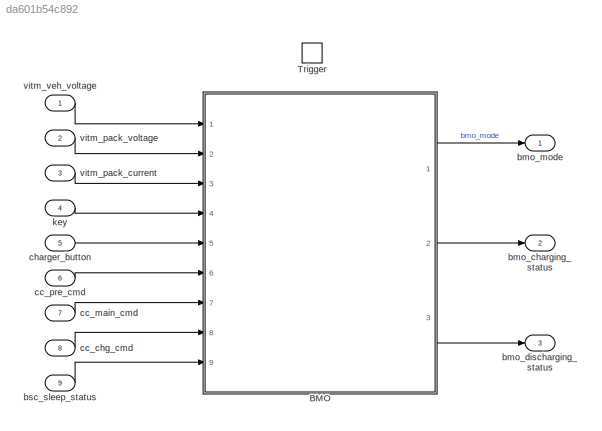
MODEL slx_da601b54c892
KIND model
CONFIG AbsTol = auto
CONFIG FixedStep = auto
CONFIG MaxStep = auto
CONFIG MinStep = auto
CONFIG RelTol = 1e-3
CONFIG SampleTimeConstraint = Unconstrained
CONFIG Solver = FixedStepAuto
CONFIG SolverMode = Auto
CONFIG SolverName = FixedStepAuto
CONFIG StartTime = 0.0
CONFIG StopTime = 10.0
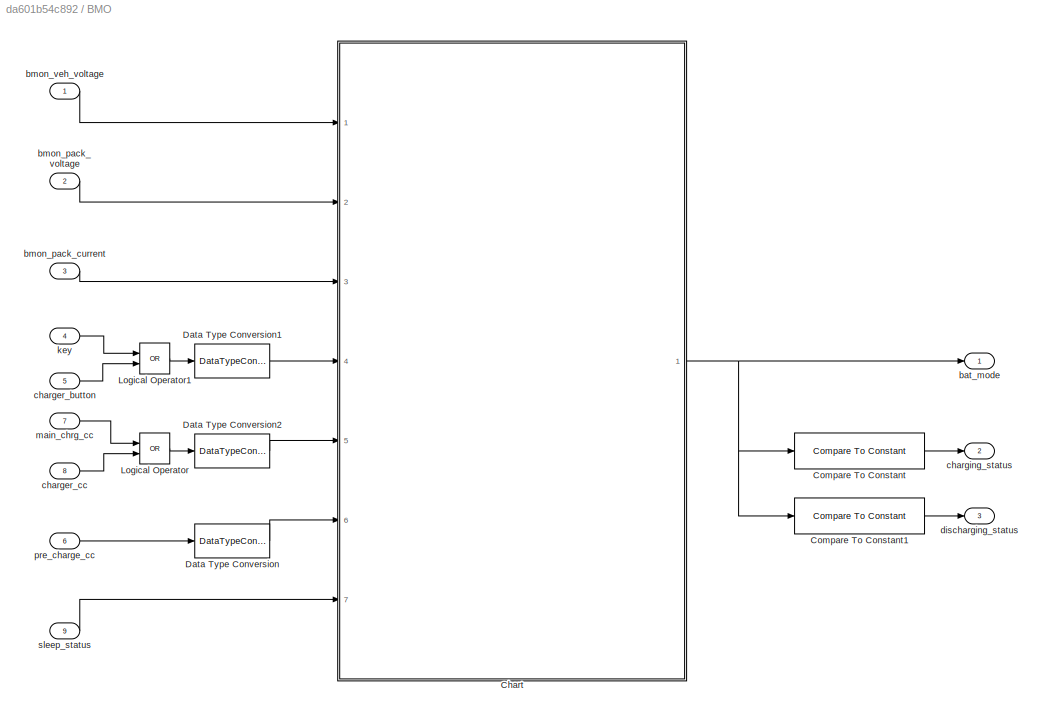
BLOCK [SubSystem] BMO
  Ports = [9, 3]
  RequestExecContextInheritance = off
  TreatAsAtomicUnit = on
  Variant = off
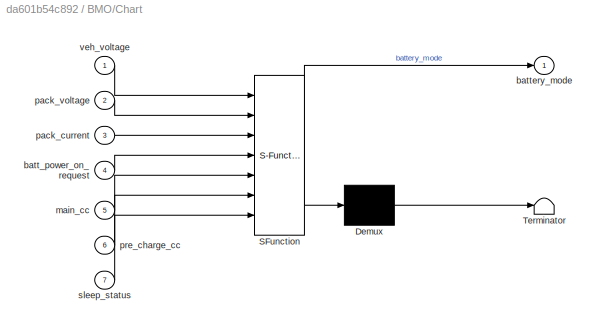
BLOCK [SubSystem] BMO/Chart
  ErrorFcn = Stateflow.Translate.translate
  PermitHierarchicalResolution = ExplicitOnly
  Ports = [7, 1]
  RequestExecContextInheritance = off
  SFBlockType = Chart
  TreatAsAtomicUnit = on
  Variant = off
BLOCK [Demux] BMO/Chart/ Demux 
  Outputs = 1
  Ports = [1, 1]
BLOCK [S-Function] BMO/Chart/ SFunction 
  EnableBusSupport = on
  FunctionName = sf_sfun
  Parameters = BMOk_BatteryCurrentThresh,BMOk_CcClosing,BMOk_CcOpening,BMOk_Charging,BMOk_ChargingSleep,BMOk_Discharging,BMOk_Off,BMOk_On,BMOk_PowerClosed,BMOk_PowerOff,BMOk_PowerOn
  PortCounts = [7 2]
  Ports = [7, 2]
  SFunctionDeploymentMode = off
  Tag = Stateflow S-Function BMO 1
BLOCK [Terminator] BMO/Chart/ Terminator 
BLOCK [Inport] BMO/Chart/batt_power_on_request
  IconDisplay = Port number
  Port = 4
BLOCK [Outport] BMO/Chart/battery_mode
  IconDisplay = Port number
BLOCK [Inport] BMO/Chart/main_cc
  IconDisplay = Port number
  Port = 5
BLOCK [Inport] BMO/Chart/pack_current
  IconDisplay = Port number
  Port = 3
BLOCK [Inport] BMO/Chart/pack_voltage
  IconDisplay = Port number
  Port = 2
BLOCK [Inport] BMO/Chart/pre_charge_cc
  IconDisplay = Port number
  Port = 6
BLOCK [Inport] BMO/Chart/sleep_status
  IconDisplay = Port number
  Port = 7
BLOCK [Inport] BMO/Chart/veh_voltage
  IconDisplay = Port number
BLOCK [Reference] BMO/Compare To Constant  REF=simulink/Logic and Bit
Operations/Compare
To Constant
  Ports = [1, 1]
  SourceBlock = simulink/Logic and Bit\nOperations/Compare\nTo Constant
  SourceType = Compare To Constant
BLOCK [Reference] BMO/Compare To Constant1  REF=simulink/Logic and Bit
Operations/Compare
To Constant
  Ports = [1, 1]
  SourceBlock = simulink/Logic and Bit\nOperations/Compare\nTo Constant
  SourceType = Compare To Constant
BLOCK [DataTypeConversion] BMO/Data Type Conversion
  RndMeth = Floor
  SaturateOnIntegerOverflow = off
BLOCK [DataTypeConversion] BMO/Data Type Conversion1
  RndMeth = Floor
  SaturateOnIntegerOverflow = off
BLOCK [DataTypeConversion] BMO/Data Type Conversion2
  RndMeth = Floor
  SaturateOnIntegerOverflow = off
BLOCK [Logic] BMO/Logical Operator
  AllPortsSameDT = off
  Operator = OR
  OutDataTypeStr = boolean
  Ports = [2, 1]
BLOCK [Logic] BMO/Logical Operator1
  AllPortsSameDT = off
  Operator = OR
  OutDataTypeStr = boolean
  Ports = [2, 1]
BLOCK [Outport] BMO/bat_mode
  IconDisplay = Port number
BLOCK [Inport] BMO/bmon_pack_current
  IconDisplay = Port number
  Port = 3
BLOCK [Inport] BMO/bmon_pack_voltage
  IconDisplay = Port number
  Port = 2
BLOCK [Inport] BMO/bmon_veh_voltage
  IconDisplay = Port number
BLOCK [Inport] BMO/charger_button
  IconDisplay = Port number
  Port = 5
BLOCK [Inport] BMO/charger_cc
  IconDisplay = Port number
  Port = 8
BLOCK [Outport] BMO/charging_status
  IconDisplay = Port number
  Port = 2
BLOCK [Outport] BMO/discharging_status
  IconDisplay = Port number
  Port = 3
BLOCK [Inport] BMO/key
  IconDisplay = Port number
  Port = 4
BLOCK [Inport] BMO/main_chrg_cc
  IconDisplay = Port number
  Port = 7
BLOCK [Inport] BMO/pre_charge_cc
  IconDisplay = Port number
  Port = 6
BLOCK [Inport] BMO/sleep_status
  IconDisplay = Port number
  Port = 9
BLOCK [TriggerPort] Trigger
  PortDimensions = 1
  Ports = []
  StatesWhenEnabling = held
  TriggerType = function-call
BLOCK [Outport] bmo_charging_status
  IconDisplay = Port number
  Port = 2
BLOCK [Outport] bmo_discharging_status
  IconDisplay = Port number
  Port = 3
BLOCK [Outport] bmo_mode
  IconDisplay = Port number
BLOCK [Inport] bsc_sleep_status
  IconDisplay = Port number
  OutDataTypeStr = boolean
  Port = 9
BLOCK [Inport] cc_chg_cmd
  IconDisplay = Port number
  OutDataTypeStr = boolean
  Port = 8
BLOCK [Inport] cc_main_cmd
  IconDisplay = Port number
  Port = 7
BLOCK [Inport] cc_pre_cmd
  IconDisplay = Port number
  Port = 6
BLOCK [Inport] charger_button
  IconDisplay = Port number
  OutDataTypeStr = uint8
  Port = 5
BLOCK [Inport] key
  IconDisplay = Port number
  OutDataTypeStr = uint8
  Port = 4
BLOCK [Inport] vitm_pack_current
  IconDisplay = Port number
  Port = 3
BLOCK [Inport] vitm_pack_voltage
  IconDisplay = Port number
  Port = 2
BLOCK [Inport] vitm_veh_voltage
  IconDisplay = Port number
NET BMO/Chart:1 -> BMO/Compare To Constant1:1, BMO/Compare To Constant:1, BMO/bat_mode:1
LINE BMO/Compare To Constant1:1 -> BMO/discharging_status:1
LINE BMO/Compare To Constant:1 -> BMO/charging_status:1
LINE BMO/Data Type Conversion1:1 -> BMO/Chart:4
LINE BMO/Data Type Conversion2:1 -> BMO/Chart:5
LINE BMO/Data Type Conversion:1 -> BMO/Chart:6
LINE BMO/Logical Operator1:1 -> BMO/Data Type Conversion1:1
LINE BMO/Logical Operator:1 -> BMO/Data Type Conversion2:1
LINE BMO/bmon_pack_current:1 -> BMO/Chart:3
LINE BMO/bmon_pack_voltage:1 -> BMO/Chart:2
LINE BMO/bmon_veh_voltage:1 -> BMO/Chart:1
LINE BMO/charger_button:1 -> BMO/Logical Operator1:2
LINE BMO/charger_cc:1 -> BMO/Logical Operator:2
LINE BMO/key:1 -> BMO/Logical Operator1:1
LINE BMO/main_chrg_cc:1 -> BMO/Logical Operator:1
LINE BMO/pre_charge_cc:1 -> BMO/Data Type Conversion:1
LINE BMO/sleep_status:1 -> BMO/Chart:7
LINE BMO:1 -> bmo_mode:1
LINE BMO:2 -> bmo_charging_status:1
LINE BMO:3 -> bmo_discharging_status:1
LINE bsc_sleep_status:1 -> BMO:9
LINE cc_chg_cmd:1 -> BMO:8
LINE cc_main_cmd:1 -> BMO:7
LINE cc_pre_cmd:1 -> BMO:6
LINE charger_button:1 -> BMO:5
LINE key:1 -> BMO:4
LINE vitm_pack_current:1 -> BMO:3
LINE vitm_pack_voltage:1 -> BMO:2
LINE vitm_veh_voltage:1 -> BMO:1
note: NET lines group one-source signal fan-out (src -> all destinations, sorted); 1:1 wires keep LINE
CHART BMO/Chart states=10 transitions=20
  STATE_LABEL 'Power_OFF\nentry:\nbattery_mode = BMOk_PowerOff;'
  STATE_LABEL 'Charging_Sleep\nentry:\nbattery_mode = BMOk_ChargingSleep;'
  STATE_LABEL 'Power_ON\nentry:\nbattery_mode = BMOk_PowerOn;'
  STATE_LABEL 'Opening_Contactors\nentry:\nbattery_mode = BMOk_CcOpening;'
  STATE_LABEL 'Closing_Contactors\nentry:\nbattery_mode = BMOk_CcClosing;'
  STATE_LABEL 'Closing_MainContactors\nentry:\nbattery_mode = BMOk_CcClosing;'
  STATE_LABEL 'Power_Closed'
  STATE_LABEL 'Power_Closed_Default\nentry:\nbattery_mode = BMOk_PowerClosed;'
  STATE_LABEL 'Discharging\nentry:\nbattery_mode = BMOk_Discharging;'
  STATE_LABEL 'Charging\nentry:\nbattery_mode = BMOk_Charging;'
  STATE_LABEL '[pack_current < -BMOk_BatteryCurrentThresh]'
  STATE_LABEL '[pack_current > BMOk_BatteryCurrentThresh]'
  STATE_LABEL 'Power_Closed_Default\nentry:\nbattery_mode = BMOk_PowerClosed;'
  STATE_LABEL 'Discharging\nentry:\nbattery_mode = BMOk_Discharging;'
  STATE_LABEL 'Charging\nentry:\nbattery_mode = BMOk_Charging;'
